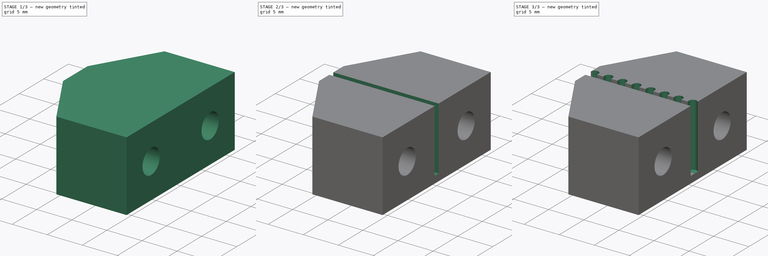
[diagram: build sequence overview — one tinted view per stage of 3, left to right]
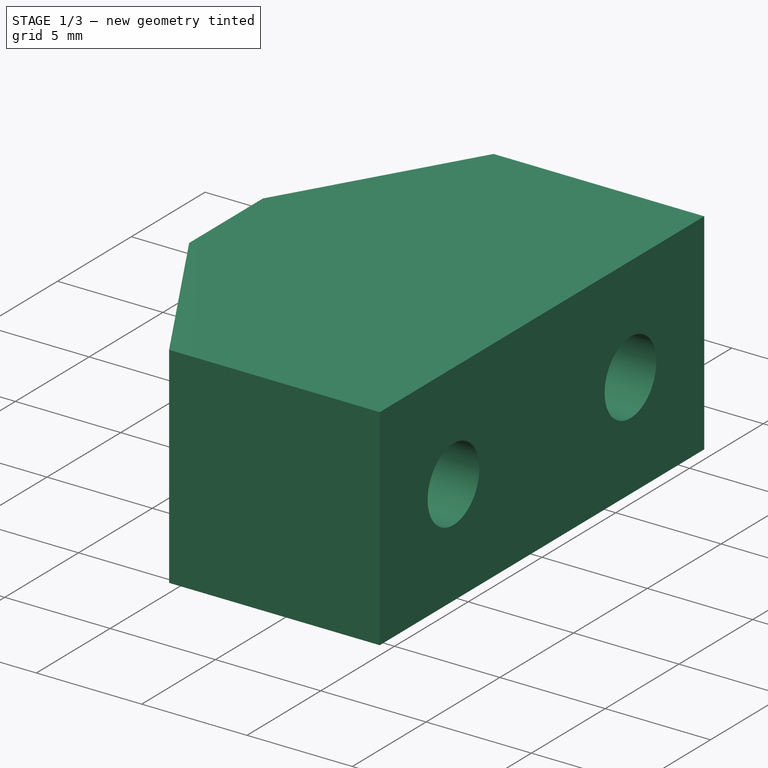
[diagram: stage 1 of 3 — iso view after this stage's code; geometry added in this stage tinted green]
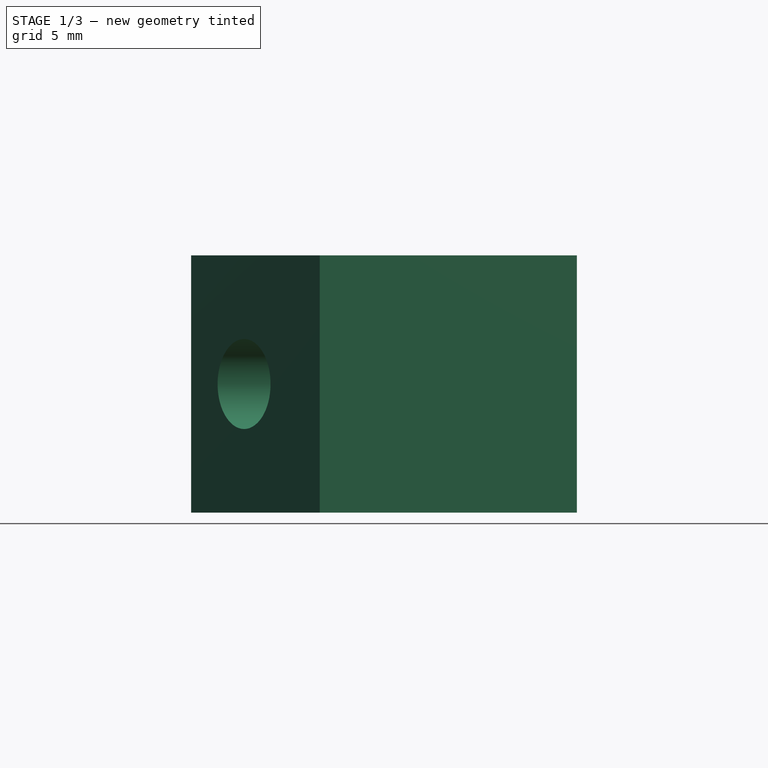
[diagram: stage 1 of 3 — front view after this stage's code; geometry added in this stage tinted green]
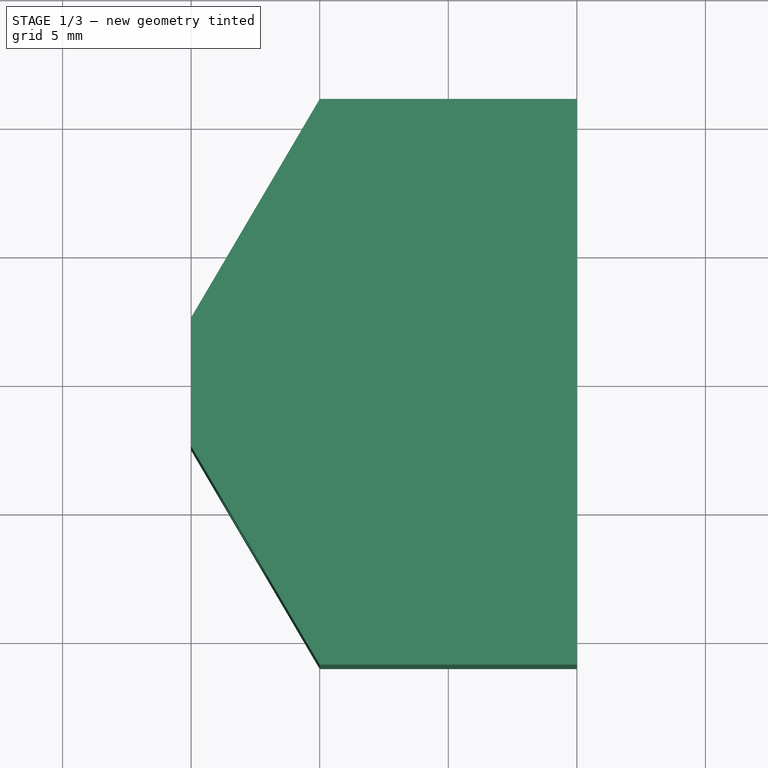
[diagram: stage 1 of 3 — top view after this stage's code; geometry added in this stage tinted green]
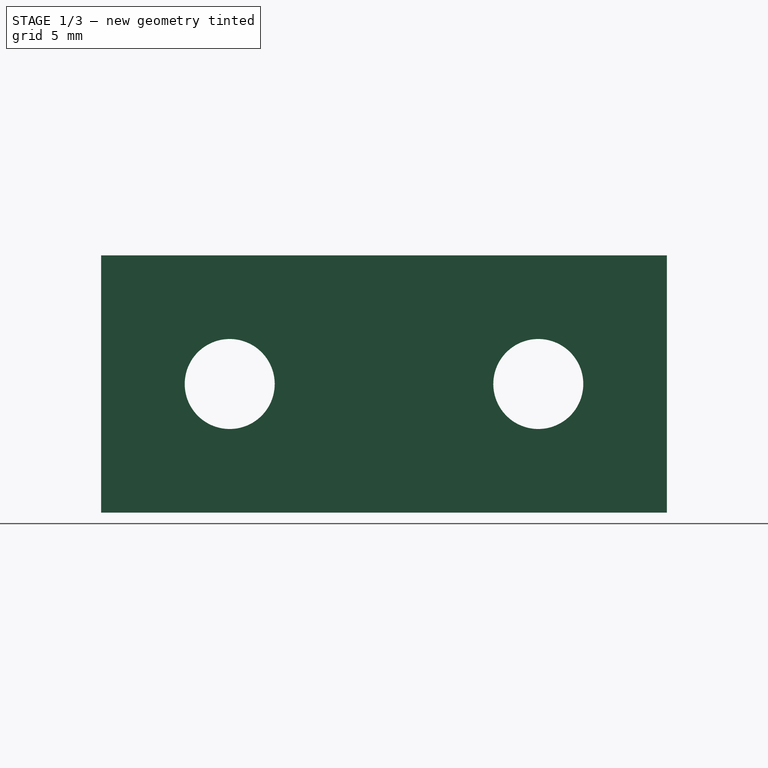
[diagram: stage 1 of 3 — right view after this stage's code; geometry added in this stage tinted green]
FCSTD DOCUMENT
Label: belt-clamp
objects: Sketcher::SketchObject×5, PartDesign::Pocket×4, PartDesign::Pad×1, PartDesign::LinearPattern×1
note: 16 computed .brp shape members not serialized (recipe doc carries the construction recipe); baked Part::Feature solids carry a one-line shape summary decoded from their .brp

FEATURE [Sketcher::SketchObject] Sketch
  sketch-geometry (6):
    g0: LineSegment StartX=-5 StartY=11 StartZ=0 EndX=5 EndY=11 EndZ=0
    g1: LineSegment StartX=5 StartY=11 StartZ=0 EndX=5 EndY=-11 EndZ=0
    g2: LineSegment StartX=5 StartY=-11 StartZ=0 EndX=-5 EndY=-11 EndZ=0
    g3: LineSegment StartX=-5 StartY=11 StartZ=0 EndX=-10 EndY=2.5 EndZ=0
    g4: LineSegment StartX=-10 StartY=2.5 StartZ=0 EndX=-10 EndY=-2.5 EndZ=0
    g5: LineSegment StartX=-10 StartY=-2.5 StartZ=0 EndX=-5 EndY=-11 EndZ=0
  constraints (18):
    c: Coincident(g0,g1)
    c: Coincident(g1,g2)
    c: Horizontal(g0)
    c: Horizontal(g2)
    c: Vertical(g1)
    c: Distance(g2) = 10
    c: Distance(g1) = 22
    c: Symmetric(g0,g1,g-1)
    c: Symmetric(g2,g1,g-2)
    c: Coincident(g0,g3)
    c: Coincident(g3,g4)
    c: Vertical(g4)
    c: Coincident(g4,g5)
    c: Coincident(g5,g2)
    c: Distance(g4) = 5
    c: Symmetric(g4,g3,g-1)
    c: Equal(g0,g2)
    c: DistanceX(g3,g0) = 5
FEATURE [PartDesign::Pad] Pad
  Length = 10
  Length2 = 100
  Sketch = -> Sketch
  Type = 0
FEATURE [Sketcher::SketchObject] Sketch001
  Placement = pos=(5,0,0) rot=(0.57735,0.57735,0.57735;2.0944rad)
  Support = -> Pad [Face2]
  sketch-geometry (2):
    g0: Circle CenterX=-6 CenterY=5 CenterZ=0 NormalX=0 NormalY=0 NormalZ=1 Radius=1.75
    g1: Circle CenterX=6 CenterY=5 CenterZ=0 NormalX=0 NormalY=0 NormalZ=1 Radius=1.75
  constraints (5):
    c: Symmetric(g0,g1,g-2)
    c: Distance(g0,g1) = 12
    c: DistanceY(g-1,g0) = 5
    c: Equal(g1,g0)
    c: Radius(g1) = 1.75
FEATURE [PartDesign::Pocket] Pocket
  Length = 5
  Sketch = -> Sketch001
  Type = 1
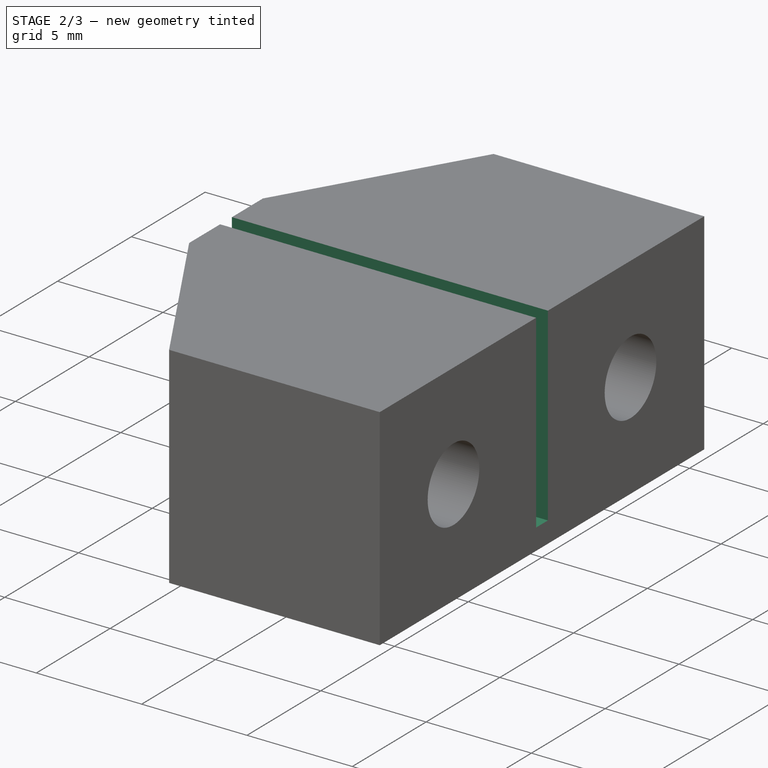
[diagram: stage 2 of 3 — iso view after this stage's code; geometry added in this stage tinted green]
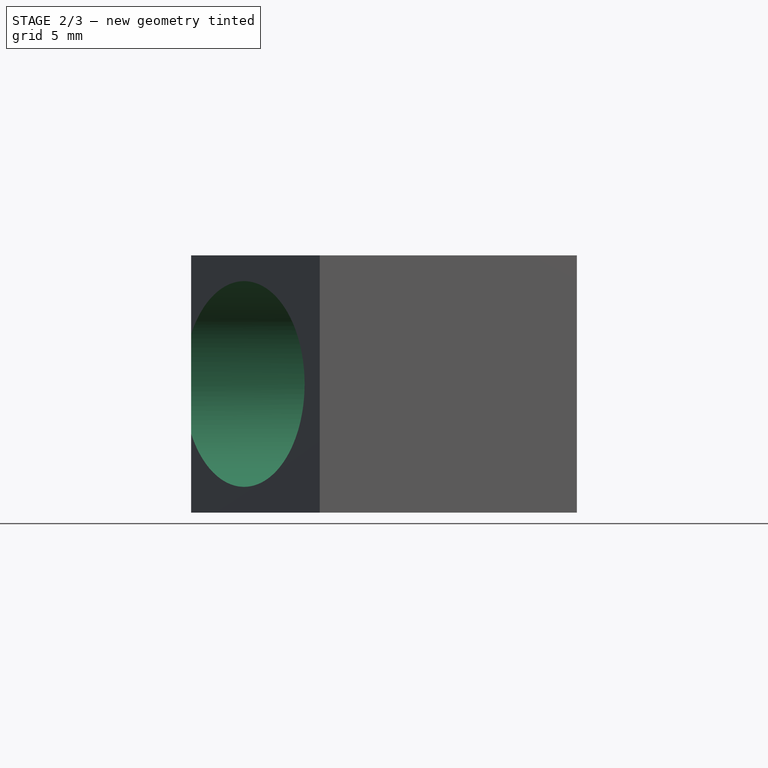
[diagram: stage 2 of 3 — front view after this stage's code; geometry added in this stage tinted green]
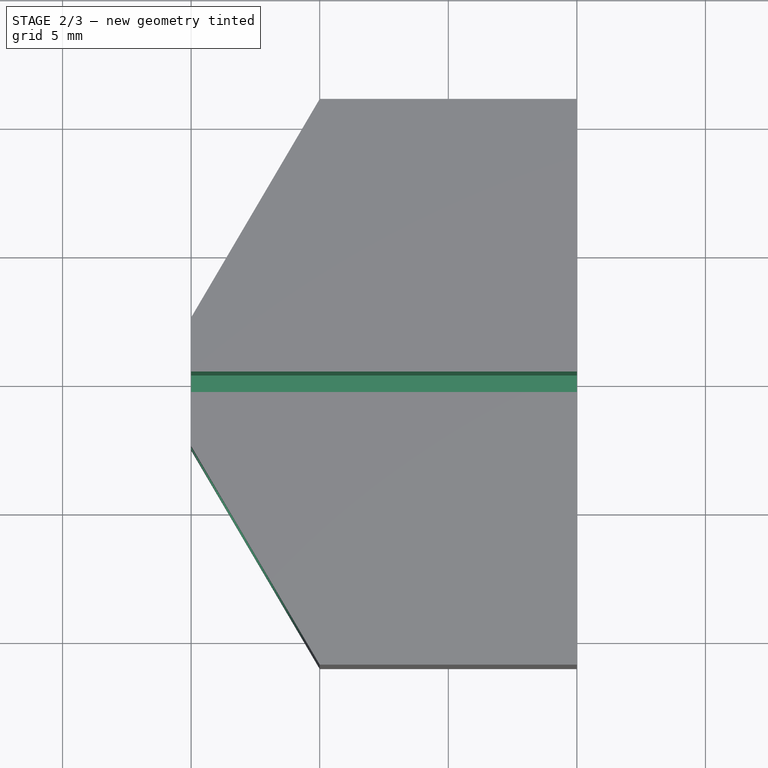
[diagram: stage 2 of 3 — top view after this stage's code; geometry added in this stage tinted green]
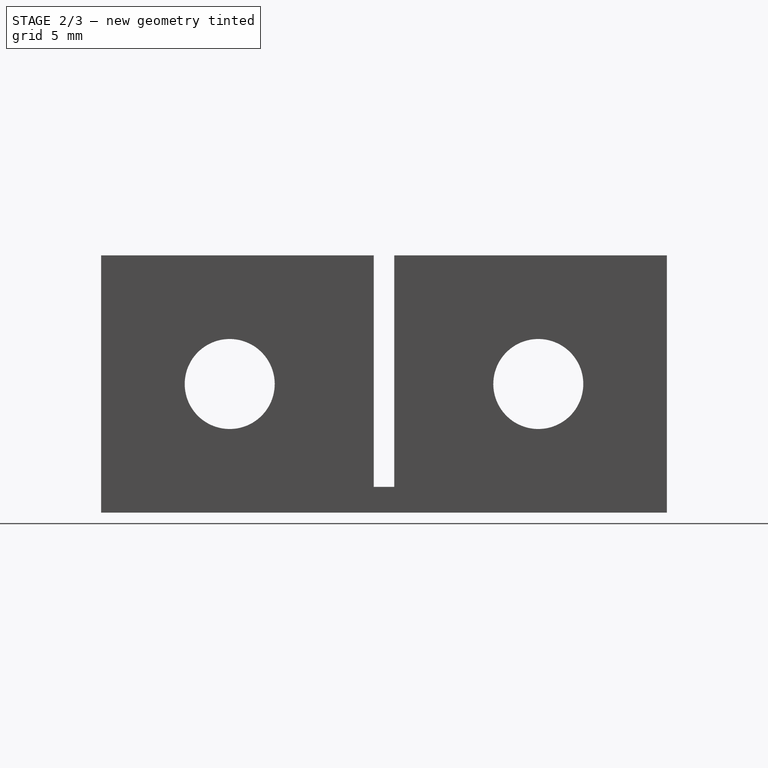
[diagram: stage 2 of 3 — right view after this stage's code; geometry added in this stage tinted green]
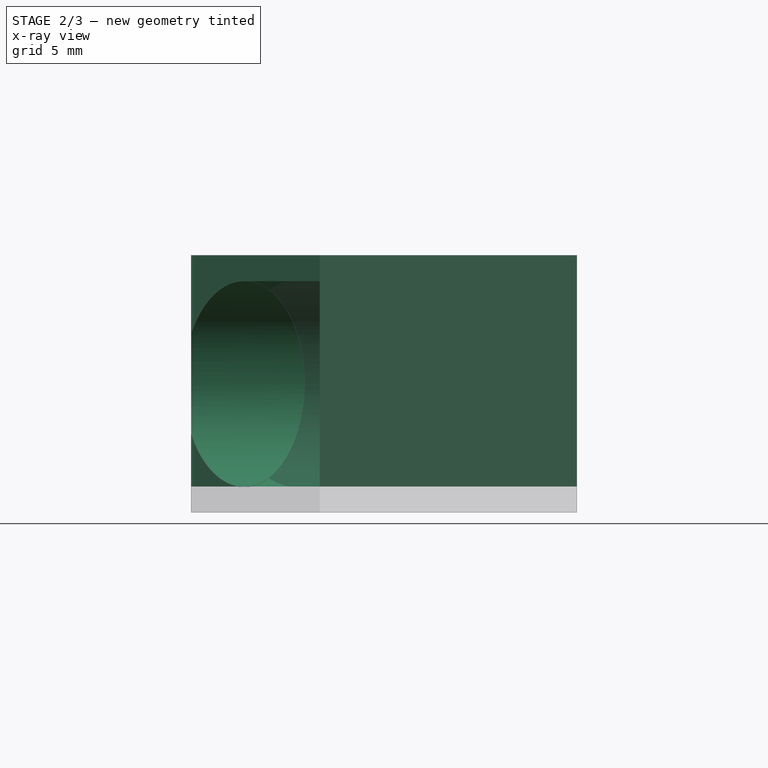
[diagram: stage 2 of 3 — x-ray composite at the front view; earlier geometry ghosted, this stage's added geometry solid]
FEATURE [Sketcher::SketchObject] Sketch002
  Placement = pos=(-10,0,0) rot=(0.57735,-0.57735,-0.57735;2.0944rad)
  Support = -> Pocket [Face7]
  sketch-geometry (2):
    g0: Circle CenterX=-6 CenterY=5 CenterZ=0 NormalX=0 NormalY=0 NormalZ=1 Radius=4
    g1: Circle CenterX=6 CenterY=5 CenterZ=0 NormalX=0 NormalY=0 NormalZ=1 Radius=4
  constraints (5):
    c: Symmetric(g1,g0,g-2)
    c: Distance(g0,g1) = 12
    c: DistanceY(g0) = 5
    c: Equal(g0,g1)
    c: Radius(g1) = 4
FEATURE [PartDesign::Pocket] Pocket001
  Length = 5
  Sketch = -> Sketch002
  Type = 0
FEATURE [Sketcher::SketchObject] Sketch004
  ExternalGeometry = -> [Pocket001]
  Placement = pos=(0,0,10) rot=(0,0,1;0rad)
  Support = -> Pocket001 [Face5]
  sketch-geometry (4):
    g0: LineSegment StartX=-10 StartY=0.4 StartZ=0 EndX=5 EndY=0.4 EndZ=0
    g1: LineSegment StartX=5 StartY=0.4 StartZ=0 EndX=5 EndY=-0.4 EndZ=0
    g2: LineSegment StartX=5 StartY=-0.4 StartZ=0 EndX=-10 EndY=-0.4 EndZ=0
    g3: LineSegment StartX=-10 StartY=-0.4 StartZ=0 EndX=-10 EndY=0.4 EndZ=0
  constraints (12):
    c: Coincident(g0,g1)
    c: Coincident(g1,g2)
    c: Coincident(g2,g3)
    c: Coincident(g3,g0)
    c: Horizontal(g0)
    c: Horizontal(g2)
    c: Vertical(g1)
    c: Vertical(g3)
    c: PointOnObject(g0,g-3)
    c: Distance(g0,g1) = 0.8
    c: Symmetric(g1,g0,g-1)
    c: PointOnObject(g1,g-4)
FEATURE [PartDesign::Pocket] Pocket002
  Length = 9
  Sketch = -> Sketch004
  Type = 0
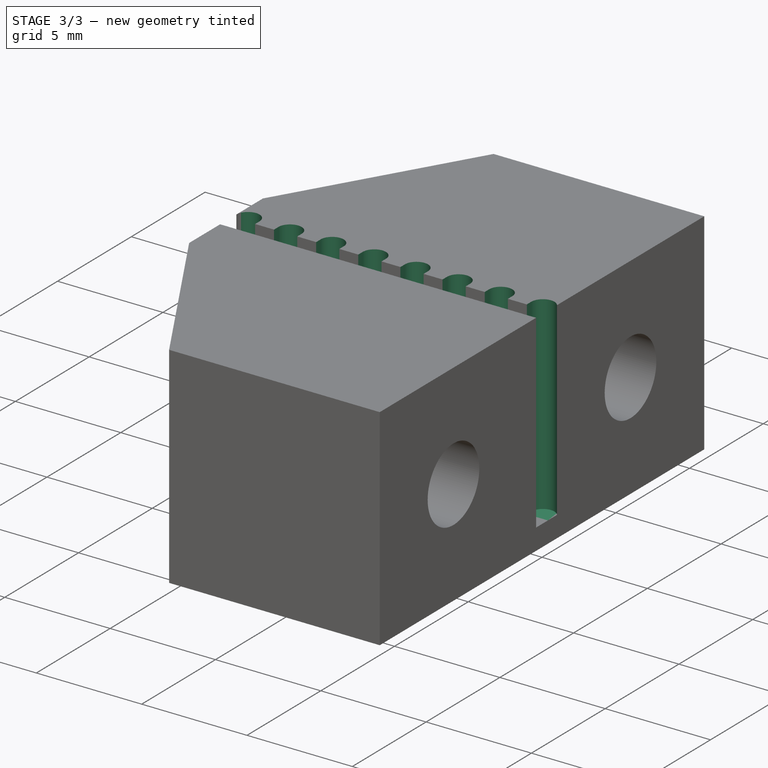
[diagram: stage 3 of 3 — iso view after this stage's code; geometry added in this stage tinted green]
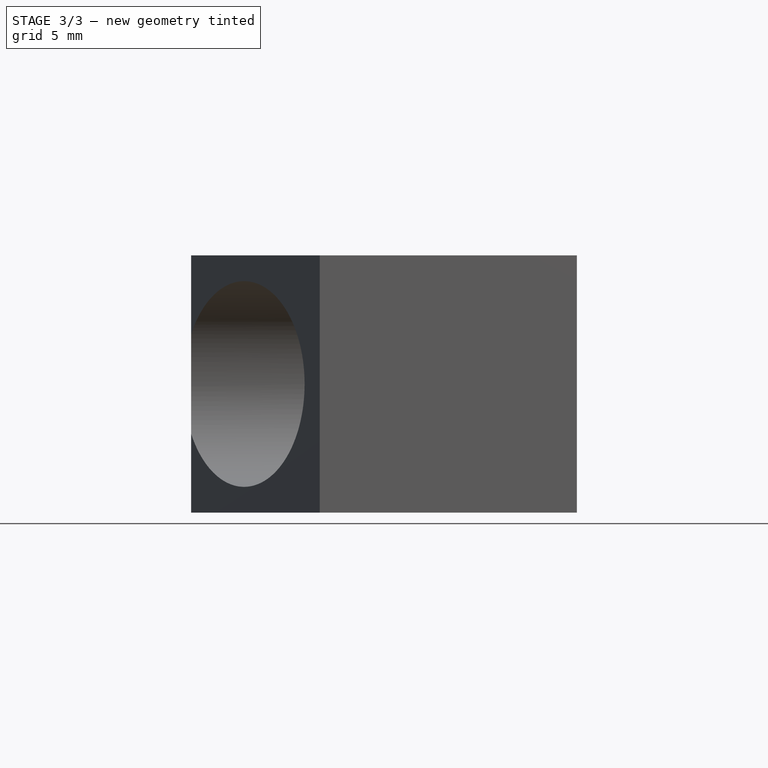
[diagram: stage 3 of 3 — front view after this stage's code; geometry added in this stage tinted green]
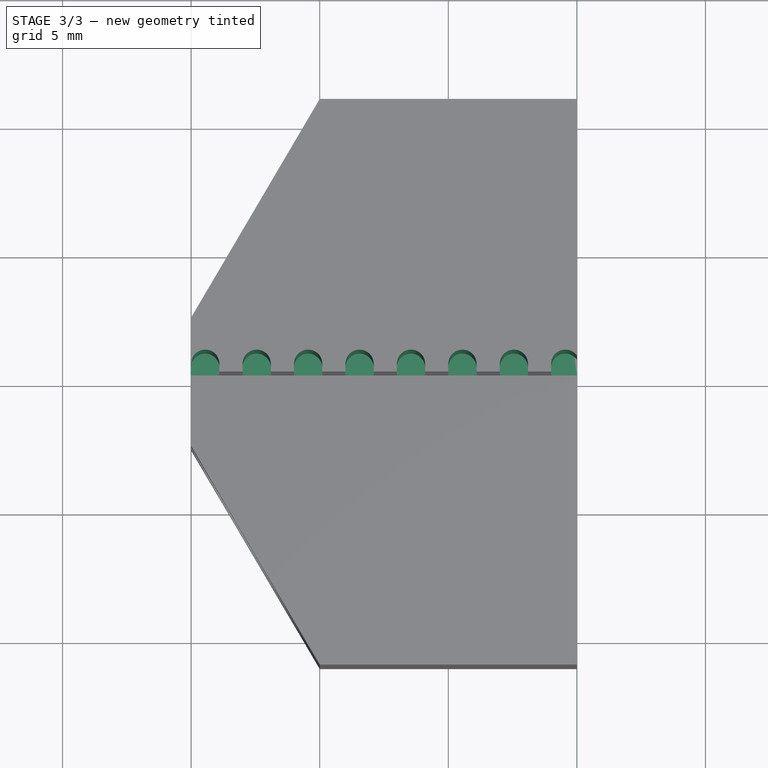
[diagram: stage 3 of 3 — top view after this stage's code; geometry added in this stage tinted green]
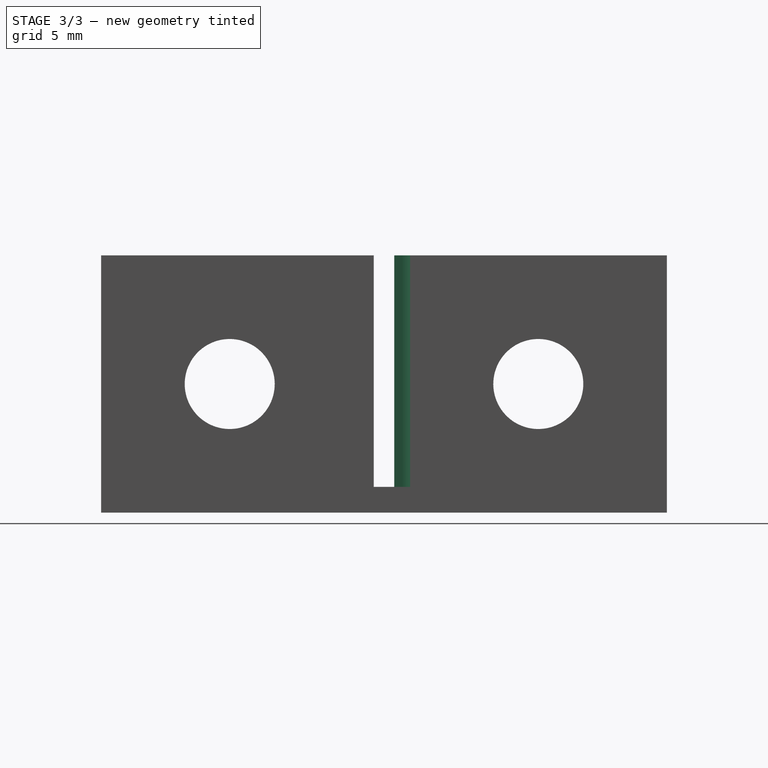
[diagram: stage 3 of 3 — right view after this stage's code; geometry added in this stage tinted green]
FEATURE [Sketcher::SketchObject] Sketch003
  ExternalGeometry = -> [Pocket002]
  Placement = pos=(0,0,10) rot=(0,0,1;0rad)
  Support = -> Pocket002 [Face5]
  sketch-geometry (4):
    g0: ArcOfCircle CenterX=-9.45 CenterY=0.7 CenterZ=0 NormalX=0 NormalY=0 NormalZ=1 Radius=0.55 StartAngle=0 EndAngle=3.14159
    g1: LineSegment StartX=-10 StartY=0.7 StartZ=0 EndX=-10 EndY=0.4 EndZ=0
    g2: LineSegment StartX=-10 StartY=0.4 StartZ=0 EndX=-8.9 EndY=0.4 EndZ=0
    g3: LineSegment StartX=-8.9 StartY=0.4 StartZ=0 EndX=-8.9 EndY=0.7 EndZ=0
  constraints (12):
    c: Radius(g0) = 0.55
    c: Tangent(g0,g1)
    c: Coincident(g1,g2)
    c: Horizontal(g2)
    c: Coincident(g2,g3)
    c: Coincident(g0,g3)
    c: Vertical(g1)
    c: Vertical(g3)
    c: Equal(g1,g3)
    c: Distance(g3) = 0.3
    c: DistanceY(g1,g-3) = 0
    c: DistanceX(g1,g-3) = 0
FEATURE [PartDesign::Pocket] Pocket003
  Length = 9
  Sketch = -> Sketch003
  Type = 0
FEATURE [PartDesign::LinearPattern] LinearPattern  label="belt-clamp"
  Direction = -> Sketch003 [H_Axis]
  Length = 14
  Occurrences = 8
  Originals = -> [Pocket003]
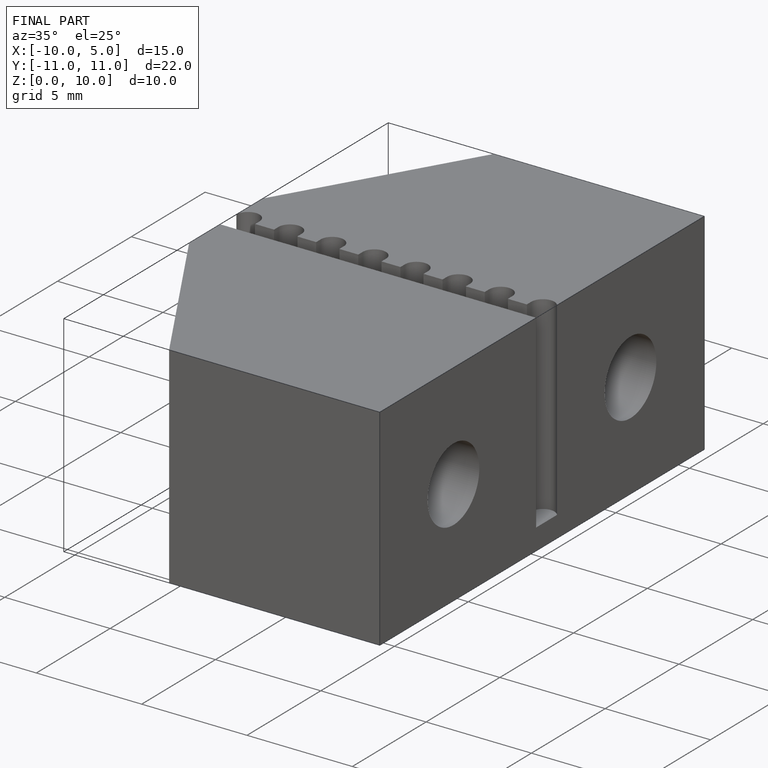
[diagram: finished part — iso view with bounding-box wireframe]
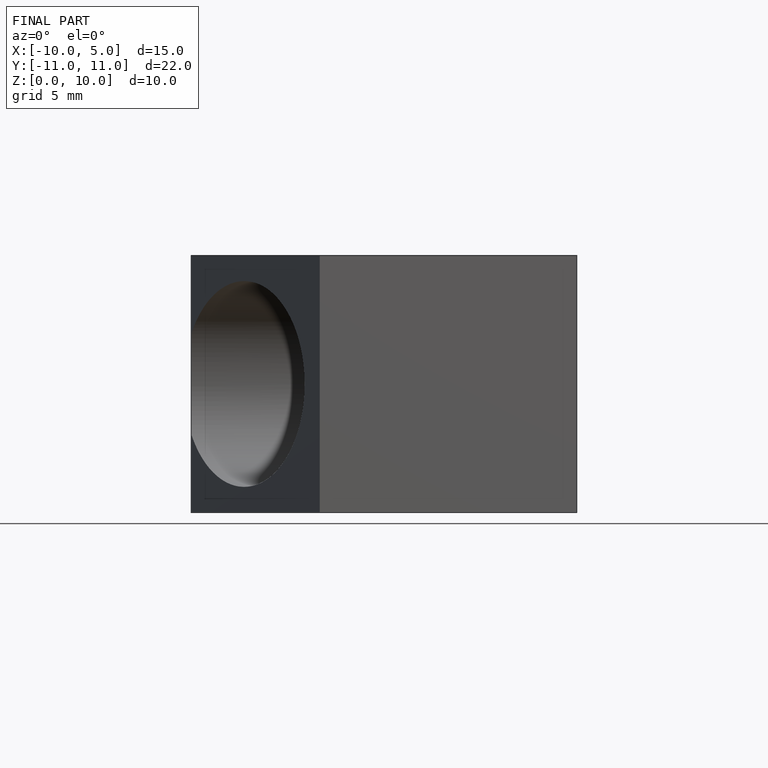
[diagram: finished part — front view with bounding-box wireframe]
